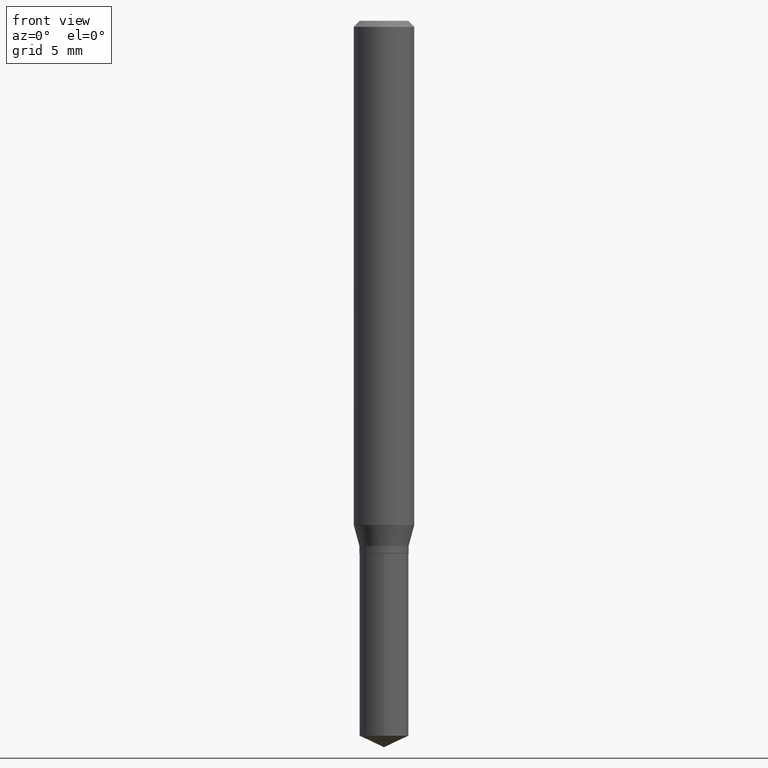
[diagram: clean part render]
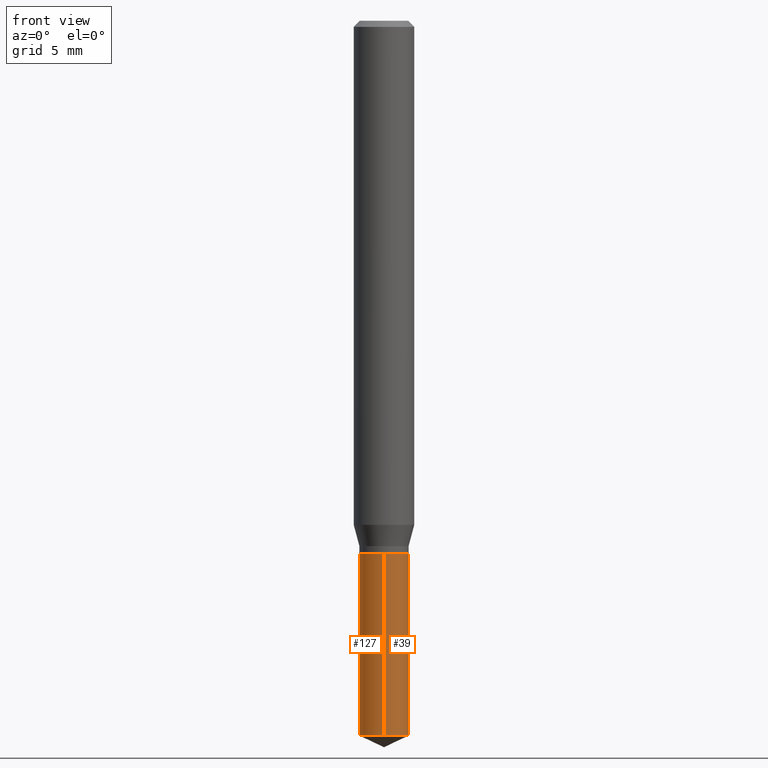
[diagram: same view with one multi-face feature highlighted, each face labeled with its STEP entity id]
A machine part, front view. The highlighted faces form ONE feature: a constant-radius fillet chain: 2 tangent blend faces with common blend radius 1.2891 mm. The faces share edges in the B-rep.
Their STEP definitions:
[1] entity #127 (Cylinder):
#14 = FACE_OUTER_BOUND ( 'NONE', #356, .T. ) ;
#17 = CARTESIAN_POINT ( 'NONE',  ( -3.543853558925511729E-16, -0.05075000000000384759, -1.099999999999999867 ) ) ;
#18 = ORIENTED_EDGE ( 'NONE', *, *, #116, .T. ) ;
#29 = CARTESIAN_POINT ( 'NONE',  ( 3.606004383982870085E-16, 0.05074999999999616623, -1.100000000000000089 ) ) ;
#30 = ORIENTED_EDGE ( 'NONE', *, *, #57, .F. ) ;
#33 = VERTEX_POINT ( 'NONE', #375 ) ;
#40 = EDGE_CURVE ( 'NONE', #94, #246, #401, .T. ) ;
#53 = DIRECTION ( 'NONE',  ( -2.445399690415121810E-29, 3.491580316559632610E-15, 1.000000000000000000 ) ) ;
#57 = EDGE_CURVE ( 'NONE', #354, #33, #316, .T. ) ;
#78 = VECTOR ( 'NONE', #348, 39.37007874015748143 ) ;
#85 = CARTESIAN_POINT ( 'NONE',  ( 2.690015686803650369E-29, -3.840629472727460101E-15, -1.100000000000000089 ) ) ;
#94 = VERTEX_POINT ( 'NONE', #96 ) ;
#96 = CARTESIAN_POINT ( 'NONE',  ( 3.606004383982870085E-16, 0.05074999999999484784, -1.476334886348634523 ) ) ;
#105 = AXIS2_PLACEMENT_3D ( 'NONE', #456, #451, #125 ) ;
#116 = EDGE_CURVE ( 'NONE', #246, #33, #428, .T. ) ;
#125 = DIRECTION ( 'NONE',  ( -6.982962677686266711E-15, -1.000000000000000000, 2.691475855826860001E-15 ) ) ;
#127 = ADVANCED_FACE ( 'NONE', ( #14 ), #132, .T. ) ;
#128 = DIRECTION ( 'NONE',  ( -2.445399690415121530E-29, 3.491580316559632610E-15, 1.000000000000000000 ) ) ;
#132 = CYLINDRICAL_SURFACE ( 'NONE', #477, 0.05075000000000000344 ) ;
#169 = CARTESIAN_POINT ( 'NONE',  ( -3.543853558925419531E-16, -0.05075000000000517292, -1.476334886348633857 ) ) ;
#189 = AXIS2_PLACEMENT_3D ( 'NONE', #194, #307, #264 ) ;
#194 = CARTESIAN_POINT ( 'NONE',  ( 3.610304901373009879E-29, -5.154632954337057235E-15, -1.476334886348634079 ) ) ;
#207 = DIRECTION ( 'NONE',  ( -6.982962677686266711E-15, -1.000000000000000000, 2.691475855826860001E-15 ) ) ;
#218 = ORIENTED_EDGE ( 'NONE', *, *, #40, .T. ) ;
#246 = VERTEX_POINT ( 'NONE', #169 ) ;
#264 = DIRECTION ( 'NONE',  ( -6.982962677686266711E-15, -1.000000000000000000, 5.382951711653720002E-15 ) ) ;
#267 = VECTOR ( 'NONE', #53, 39.37007874015748143 ) ;
#307 = DIRECTION ( 'NONE',  ( -2.445399690415121530E-29, 3.491580316559632610E-15, 1.000000000000000000 ) ) ;
#316 = CIRCLE ( 'NONE', #105, 0.05075000000000000344 ) ;
#334 = ORIENTED_EDGE ( 'NONE', *, *, #480, .F. ) ;
#348 = DIRECTION ( 'NONE',  ( -2.445399690415121810E-29, 3.491580316559632610E-15, 1.000000000000000000 ) ) ;
#354 = VERTEX_POINT ( 'NONE', #29 ) ;
#356 = EDGE_LOOP ( 'NONE', ( #334, #218, #18, #30 ) ) ;
#375 = CARTESIAN_POINT ( 'NONE',  ( -3.543853558925511729E-16, -0.05075000000000384759, -1.099999999999999867 ) ) ;
#401 = CIRCLE ( 'NONE', #189, 0.05075000000000000344 ) ;
#415 = CARTESIAN_POINT ( 'NONE',  ( 3.606004383982776901E-16, 0.05074999999999616623, -1.100000000000000089 ) ) ;
#428 = LINE ( 'NONE', #17, #267 ) ;
#451 = DIRECTION ( 'NONE',  ( -2.445399690415121530E-29, 3.491580316559632610E-15, 1.000000000000000000 ) ) ;
#456 = CARTESIAN_POINT ( 'NONE',  ( 2.690015686803650369E-29, -3.840629472727460101E-15, -1.100000000000000089 ) ) ;
#477 = AXIS2_PLACEMENT_3D ( 'NONE', #85, #128, #207 ) ;
#480 = EDGE_CURVE ( 'NONE', #94, #354, #488, .T. ) ;
#488 = LINE ( 'NONE', #415, #78 ) ;
[2] entity #39 (Cylinder):
#15 = AXIS2_PLACEMENT_3D ( 'NONE', #235, #325, #290 ) ;
#17 = CARTESIAN_POINT ( 'NONE',  ( -3.543853558925511729E-16, -0.05075000000000384759, -1.099999999999999867 ) ) ;
#29 = CARTESIAN_POINT ( 'NONE',  ( 3.606004383982870085E-16, 0.05074999999999616623, -1.100000000000000089 ) ) ;
#33 = VERTEX_POINT ( 'NONE', #375 ) ;
#39 = ADVANCED_FACE ( 'NONE', ( #345 ), #414, .T. ) ;
#53 = DIRECTION ( 'NONE',  ( -2.445399690415121810E-29, 3.491580316559632610E-15, 1.000000000000000000 ) ) ;
#78 = VECTOR ( 'NONE', #348, 39.37007874015748143 ) ;
#82 = EDGE_CURVE ( 'NONE', #246, #94, #332, .T. ) ;
#94 = VERTEX_POINT ( 'NONE', #96 ) ;
#96 = CARTESIAN_POINT ( 'NONE',  ( 3.606004383982870085E-16, 0.05074999999999484784, -1.476334886348634523 ) ) ;
#116 = EDGE_CURVE ( 'NONE', #246, #33, #428, .T. ) ;
#121 = CARTESIAN_POINT ( 'NONE',  ( 2.690015686803650369E-29, -3.840629472727460101E-15, -1.100000000000000089 ) ) ;
#124 = CIRCLE ( 'NONE', #15, 0.05075000000000000344 ) ;
#149 = ORIENTED_EDGE ( 'NONE', *, *, #480, .T. ) ;
#169 = CARTESIAN_POINT ( 'NONE',  ( -3.543853558925419531E-16, -0.05075000000000517292, -1.476334886348633857 ) ) ;
#202 = DIRECTION ( 'NONE',  ( -2.445399690415121530E-29, 3.491580316559632610E-15, 1.000000000000000000 ) ) ;
#204 = EDGE_LOOP ( 'NONE', ( #351, #149, #410, #294 ) ) ;
#230 = DIRECTION ( 'NONE',  ( -6.982962677686266711E-15, -1.000000000000000000, 2.691475855826860001E-15 ) ) ;
#235 = CARTESIAN_POINT ( 'NONE',  ( 2.690015686803650369E-29, -3.840629472727460101E-15, -1.100000000000000089 ) ) ;
#236 = DIRECTION ( 'NONE',  ( -6.982962677686266711E-15, -1.000000000000000000, 5.382951711653720002E-15 ) ) ;
#246 = VERTEX_POINT ( 'NONE', #169 ) ;
#267 = VECTOR ( 'NONE', #53, 39.37007874015748143 ) ;
#290 = DIRECTION ( 'NONE',  ( -6.982962677686266711E-15, -1.000000000000000000, 2.691475855826860001E-15 ) ) ;
#294 = ORIENTED_EDGE ( 'NONE', *, *, #116, .F. ) ;
#309 = DIRECTION ( 'NONE',  ( -2.445399690415121530E-29, 3.491580316559632610E-15, 1.000000000000000000 ) ) ;
#324 = AXIS2_PLACEMENT_3D ( 'NONE', #487, #202, #236 ) ;
#325 = DIRECTION ( 'NONE',  ( -2.445399690415121530E-29, 3.491580316559632610E-15, 1.000000000000000000 ) ) ;
#331 = AXIS2_PLACEMENT_3D ( 'NONE', #121, #309, #230 ) ;
#332 = CIRCLE ( 'NONE', #324, 0.05075000000000000344 ) ;
#345 = FACE_OUTER_BOUND ( 'NONE', #204, .T. ) ;
#348 = DIRECTION ( 'NONE',  ( -2.445399690415121810E-29, 3.491580316559632610E-15, 1.000000000000000000 ) ) ;
#351 = ORIENTED_EDGE ( 'NONE', *, *, #82, .T. ) ;
#354 = VERTEX_POINT ( 'NONE', #29 ) ;
#375 = CARTESIAN_POINT ( 'NONE',  ( -3.543853558925511729E-16, -0.05075000000000384759, -1.099999999999999867 ) ) ;
#410 = ORIENTED_EDGE ( 'NONE', *, *, #457, .F. ) ;
#414 = CYLINDRICAL_SURFACE ( 'NONE', #331, 0.05075000000000000344 ) ;
#415 = CARTESIAN_POINT ( 'NONE',  ( 3.606004383982776901E-16, 0.05074999999999616623, -1.100000000000000089 ) ) ;
#428 = LINE ( 'NONE', #17, #267 ) ;
#457 = EDGE_CURVE ( 'NONE', #33, #354, #124, .T. ) ;
#480 = EDGE_CURVE ( 'NONE', #94, #354, #488, .T. ) ;
#487 = CARTESIAN_POINT ( 'NONE',  ( 3.610304901373009879E-29, -5.154632954337057235E-15, -1.476334886348634079 ) ) ;
#488 = LINE ( 'NONE', #415, #78 ) ;